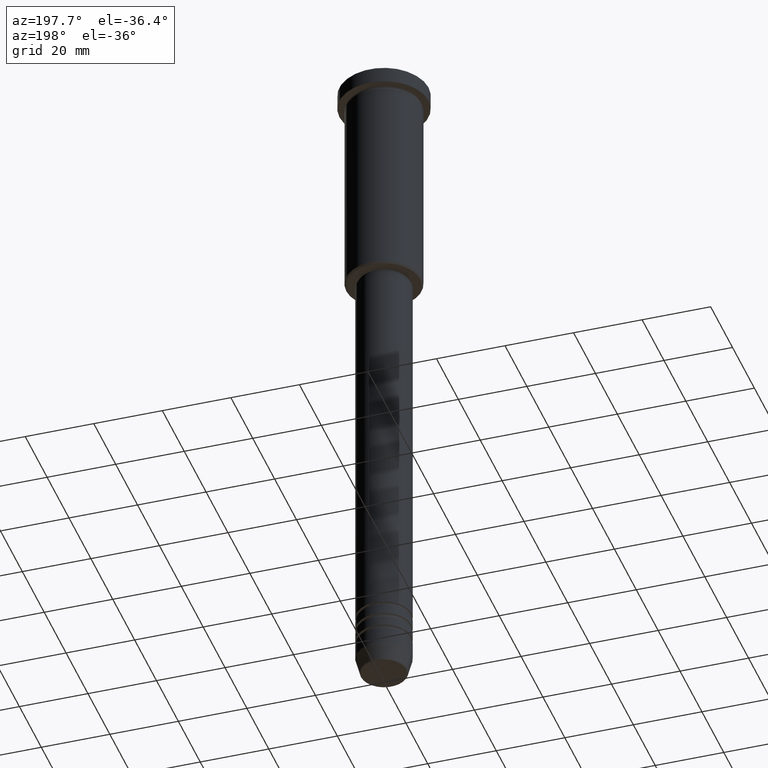
[diagram: clean part render]
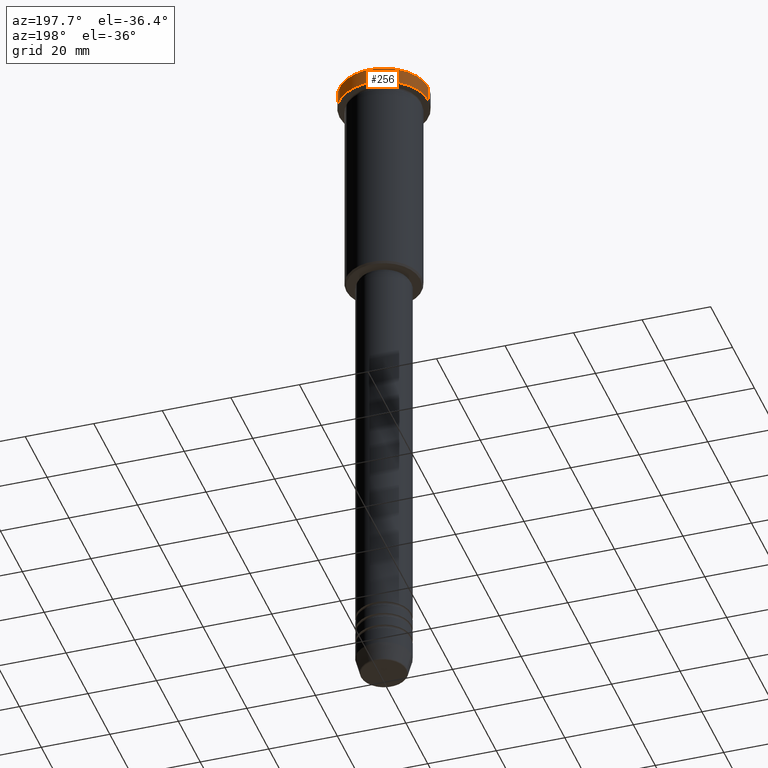
[diagram: same view with one face highlighted and labeled with its STEP entity id]
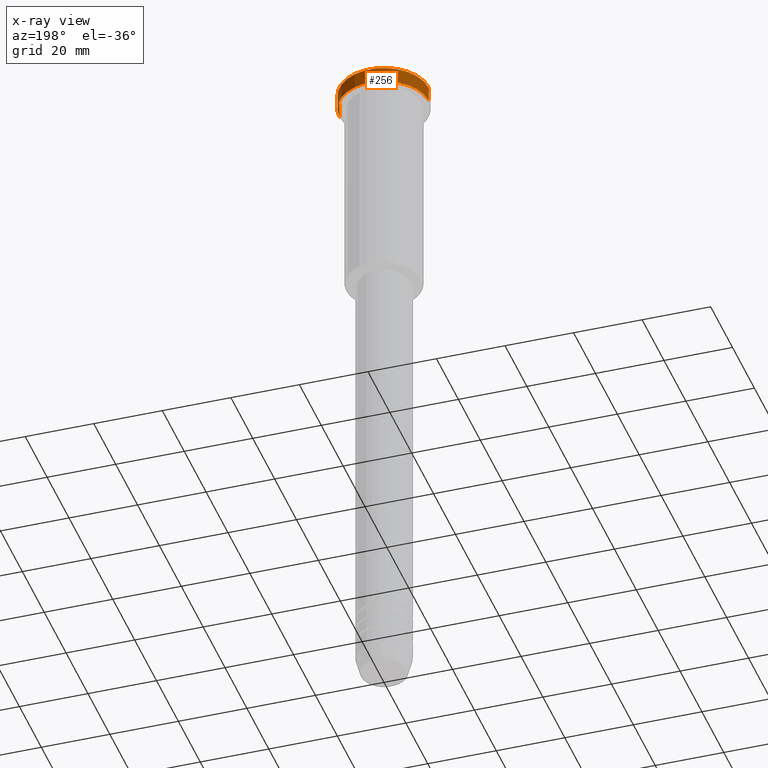
[diagram: x-ray of the same camera — body ghosted, the highlighted face saturated]
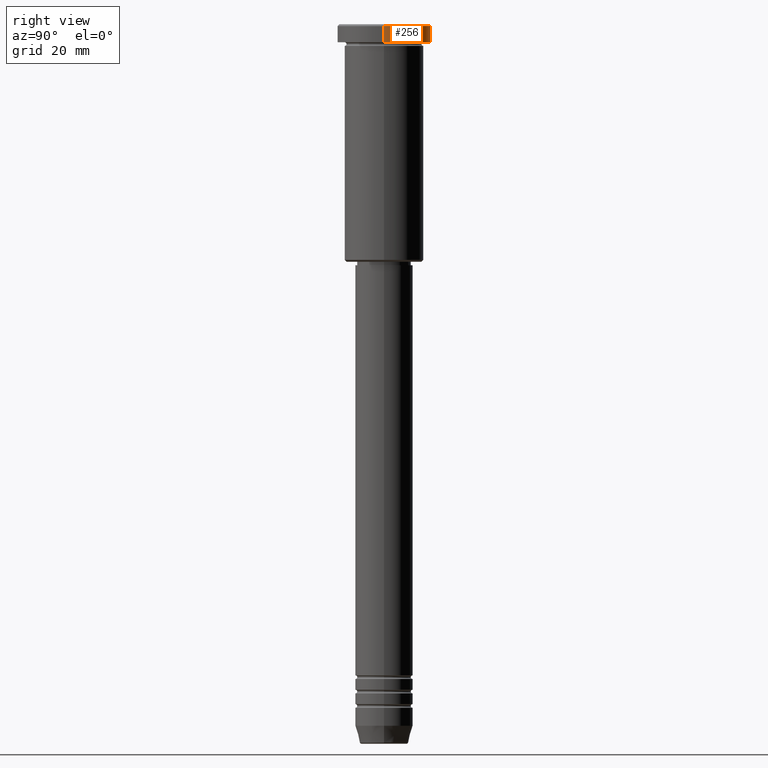
[diagram: same view with one face highlighted and labeled with its STEP entity id]
A machine part, auxiliary view. The second image highlights one B-rep face of the part: STEP entity #256.
The next image is the same camera in x-ray: the body ghosted, the highlighted face saturated — about 0% of this face is hidden behind the body in this view.
A second angle (right view) of the same face is appended — the face is thin or edge-on in the first view.
In plain terms, the highlighted cylindrical surface (partial cylindrical patch) has radius 13 mm, axis along (-0, -0, 1).
Its self-contained STEP definition (entity closure, byte-faithful):
#2 = AXIS2_PLACEMENT_3D ( 'NONE', #163, #340, #802 ) ;
#30 = ORIENTED_EDGE ( 'NONE', *, *, #495, .T. ) ;
#86 = ORIENTED_EDGE ( 'NONE', *, *, #126, .T. ) ;
#106 = LINE ( 'NONE', #925, #983 ) ;
#114 = DIRECTION ( 'NONE',  ( -0.000000000000000000, -0.000000000000000000, 1.000000000000000000 ) ) ;
#126 = EDGE_CURVE ( 'NONE', #212, #757, #1069, .T. ) ;
#145 = VERTEX_POINT ( 'NONE', #703 ) ;
#163 = CARTESIAN_POINT ( 'NONE',  ( 0.000000000000000000, 0.000000000000000000, -5.000000000000000000 ) ) ;
#212 = VERTEX_POINT ( 'NONE', #506 ) ;
#256 = ADVANCED_FACE ( 'NONE', ( #648 ), #1012, .T. ) ;
#305 = EDGE_LOOP ( 'NONE', ( #86, #30, #327, #960 ) ) ;
#327 = ORIENTED_EDGE ( 'NONE', *, *, #1102, .T. ) ;
#340 = DIRECTION ( 'NONE',  ( -0.000000000000000000, -0.000000000000000000, 1.000000000000000000 ) ) ;
#358 = CARTESIAN_POINT ( 'NONE',  ( -13.00000000000000000, 1.592040838891559095E-15, -0.4999999999999518718 ) ) ;
#412 = LINE ( 'NONE', #690, #537 ) ;
#470 = VERTEX_POINT ( 'NONE', #358 ) ;
#495 = EDGE_CURVE ( 'NONE', #757, #470, #106, .T. ) ;
#506 = CARTESIAN_POINT ( 'NONE',  ( 13.00000000000000000, 0.000000000000000000, -5.000000000000000000 ) ) ;
#537 = VECTOR ( 'NONE', #1055, 1000.000000000000000 ) ;
#556 = CARTESIAN_POINT ( 'NONE',  ( 0.000000000000000000, 0.000000000000000000, 0.000000000000000000 ) ) ;
#558 = AXIS2_PLACEMENT_3D ( 'NONE', #1134, #961, #858 ) ;
#561 = CARTESIAN_POINT ( 'NONE',  ( -13.00000000000000000, 1.592040838891559095E-15, -5.000000000000000000 ) ) ;
#568 = DIRECTION ( 'NONE',  ( 1.000000000000000000, 0.000000000000000000, 0.000000000000000000 ) ) ;
#648 = FACE_OUTER_BOUND ( 'NONE', #305, .T. ) ;
#690 = CARTESIAN_POINT ( 'NONE',  ( 13.00000000000000000, 0.000000000000000000, 0.000000000000000000 ) ) ;
#703 = CARTESIAN_POINT ( 'NONE',  ( 13.00000000000000000, 0.000000000000000000, -0.4999999999999518718 ) ) ;
#757 = VERTEX_POINT ( 'NONE', #561 ) ;
#802 = DIRECTION ( 'NONE',  ( 1.000000000000000000, 0.000000000000000000, 0.000000000000000000 ) ) ;
#822 = EDGE_CURVE ( 'NONE', #212, #145, #412, .T. ) ;
#846 = AXIS2_PLACEMENT_3D ( 'NONE', #556, #1022, #568 ) ;
#858 = DIRECTION ( 'NONE',  ( 1.000000000000000000, 0.000000000000000000, 0.000000000000000000 ) ) ;
#925 = CARTESIAN_POINT ( 'NONE',  ( -13.00000000000000000, 1.592040838891559095E-15, 0.000000000000000000 ) ) ;
#960 = ORIENTED_EDGE ( 'NONE', *, *, #822, .F. ) ;
#961 = DIRECTION ( 'NONE',  ( 0.000000000000000000, 0.000000000000000000, -1.000000000000000000 ) ) ;
#983 = VECTOR ( 'NONE', #114, 1000.000000000000000 ) ;
#987 = CIRCLE ( 'NONE', #558, 13.00000000000000000 ) ;
#1012 = CYLINDRICAL_SURFACE ( 'NONE', #846, 13.00000000000000000 ) ;
#1022 = DIRECTION ( 'NONE',  ( -0.000000000000000000, -0.000000000000000000, 1.000000000000000000 ) ) ;
#1055 = DIRECTION ( 'NONE',  ( -0.000000000000000000, -0.000000000000000000, 1.000000000000000000 ) ) ;
#1069 = CIRCLE ( 'NONE', #2, 13.00000000000000000 ) ;
#1102 = EDGE_CURVE ( 'NONE', #470, #145, #987, .T. ) ;
#1134 = CARTESIAN_POINT ( 'NONE',  ( 0.000000000000000000, 0.000000000000000000, -0.4999999999999518718 ) ) ;